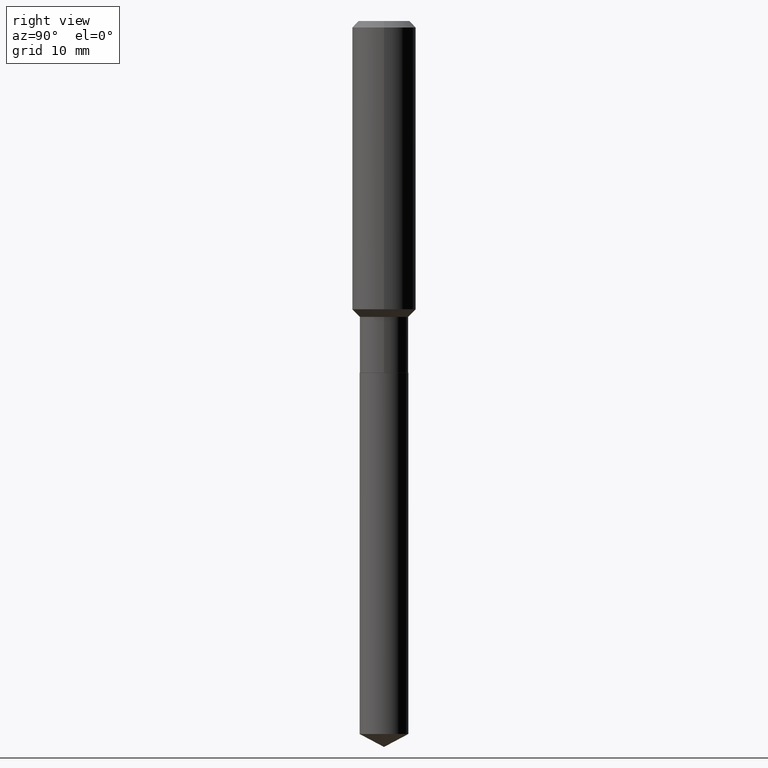
[diagram: clean part render]
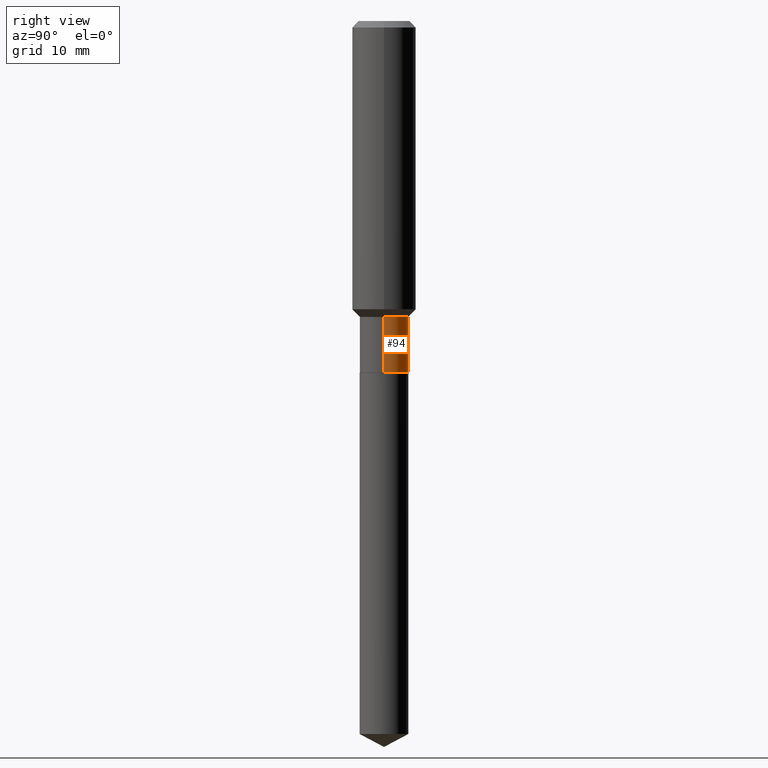
[diagram: same view with one face highlighted and labeled with its STEP entity id]
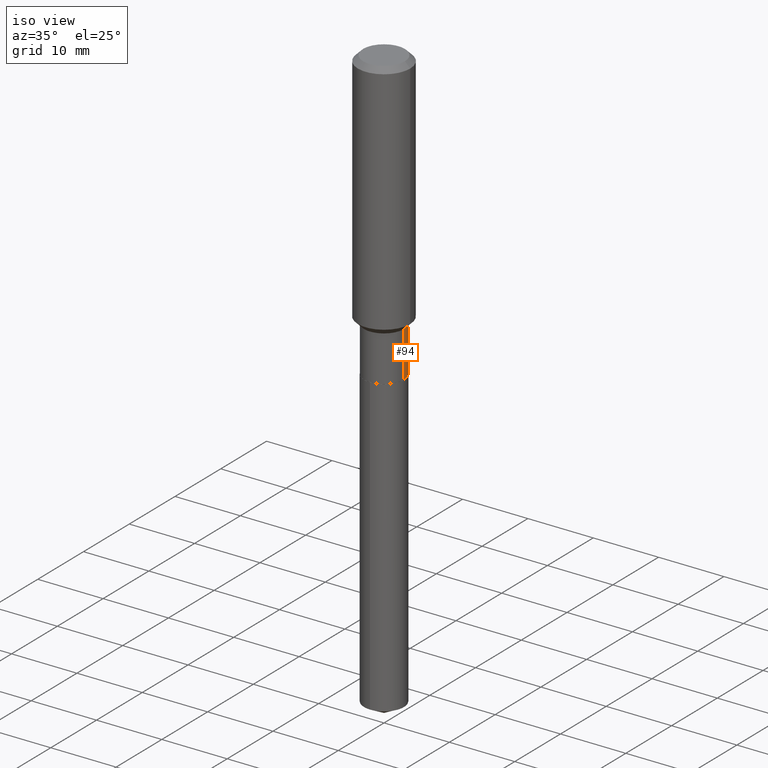
[diagram: same view with one face highlighted and labeled with its STEP entity id]
A machine part, right view. The second image highlights one B-rep face of the part: STEP entity #94.
A second angle (iso view) of the same face is appended — the face is thin or edge-on in the first view.
In plain terms, the highlighted cylindrical surface (edge-blend (fillet) strip) has radius 3.0505 mm, axis along (-0, 0, 1).
Its self-contained STEP definition (entity closure, byte-faithful):
#1 = CARTESIAN_POINT ( 'NONE',  ( 0.1200999999999999707, -5.936565720434997750E-15, -1.460100000000000176 ) ) ;
#13 = CIRCLE ( 'NONE', #397, 0.1200999999999999984 ) ;
#15 = DIRECTION ( 'NONE',  ( -2.445468806185136597E-29, 3.491481338843145583E-15, 1.000000000000000000 ) ) ;
#27 = DIRECTION ( 'NONE',  ( 1.000000000000000000, -6.982962677686266711E-15, 4.876176775795936353E-29 ) ) ;
#39 = DIRECTION ( 'NONE',  ( -2.445468806185136877E-29, 3.491481338843145188E-15, 1.000000000000000000 ) ) ;
#40 = ORIENTED_EDGE ( 'NONE', *, *, #458, .F. ) ;
#77 = VERTEX_POINT ( 'NONE', #241 ) ;
#81 = ORIENTED_EDGE ( 'NONE', *, *, #200, .T. ) ;
#94 = ADVANCED_FACE ( 'NONE', ( #138 ), #447, .T. ) ;
#97 = CARTESIAN_POINT ( 'NONE',  ( 3.570629003910918059E-29, -5.097911902844877459E-15, -1.460100000000000176 ) ) ;
#104 = VECTOR ( 'NONE', #39, 39.37007874015748143 ) ;
#112 = AXIS2_PLACEMENT_3D ( 'NONE', #97, #211, #170 ) ;
#129 = VECTOR ( 'NONE', #327, 39.37007874015748143 ) ;
#138 = FACE_OUTER_BOUND ( 'NONE', #251, .T. ) ;
#153 = CIRCLE ( 'NONE', #112, 0.1200999999999999707 ) ;
#154 = ORIENTED_EDGE ( 'NONE', *, *, #453, .T. ) ;
#166 = VERTEX_POINT ( 'NONE', #470 ) ;
#170 = DIRECTION ( 'NONE',  ( 1.000000000000000000, -6.982962677686267499E-15, 0.000000000000000000 ) ) ;
#176 = CARTESIAN_POINT ( 'NONE',  ( -0.1200999999999999845, 8.533618256478802134E-16, -5.907641043396141244E-30 ) ) ;
#191 = ORIENTED_EDGE ( 'NONE', *, *, #225, .F. ) ;
#200 = EDGE_CURVE ( 'NONE', #77, #166, #13, .T. ) ;
#211 = DIRECTION ( 'NONE',  ( -2.445468806185136597E-29, 3.491481338843145583E-15, 1.000000000000000000 ) ) ;
#225 = EDGE_CURVE ( 'NONE', #77, #231, #418, .T. ) ;
#231 = VERTEX_POINT ( 'NONE', #1 ) ;
#233 = VERTEX_POINT ( 'NONE', #336 ) ;
#241 = CARTESIAN_POINT ( 'NONE',  ( 0.1200999999999999984, -6.899167125554054261E-15, -1.735800000000000454 ) ) ;
#251 = EDGE_LOOP ( 'NONE', ( #81, #154, #40, #191 ) ) ;
#269 = DIRECTION ( 'NONE',  ( 1.000000000000000000, -6.982962677686265922E-15, 0.000000000000000000 ) ) ;
#297 = CARTESIAN_POINT ( 'NONE',  ( 0.1200999999999999845, -8.386538175901204884E-16, 5.856288307730918652E-30 ) ) ;
#327 = DIRECTION ( 'NONE',  ( -2.445468806185136877E-29, 3.491481338843145188E-15, 1.000000000000000000 ) ) ;
#334 = DIRECTION ( 'NONE',  ( -2.445468806185136597E-29, 3.491481338843145583E-15, 1.000000000000000000 ) ) ;
#336 = CARTESIAN_POINT ( 'NONE',  ( -0.1200999999999999707, -4.725850779756525106E-15, -1.460100000000000176 ) ) ;
#394 = CARTESIAN_POINT ( 'NONE',  ( 0.000000000000000000, 0.000000000000000000, 0.000000000000000000 ) ) ;
#397 = AXIS2_PLACEMENT_3D ( 'NONE', #489, #334, #269 ) ;
#418 = LINE ( 'NONE', #297, #104 ) ;
#427 = AXIS2_PLACEMENT_3D ( 'NONE', #394, #15, #27 ) ;
#438 = LINE ( 'NONE', #176, #129 ) ;
#447 = CYLINDRICAL_SURFACE ( 'NONE', #427, 0.1200999999999999845 ) ;
#453 = EDGE_CURVE ( 'NONE', #166, #233, #438, .T. ) ;
#458 = EDGE_CURVE ( 'NONE', #231, #233, #153, .T. ) ;
#470 = CARTESIAN_POINT ( 'NONE',  ( -0.1201000000000000262, -4.725850779756525106E-15, -1.735800000000000454 ) ) ;
#489 = CARTESIAN_POINT ( 'NONE',  ( 4.244844753776160881E-29, -6.060513307963933970E-15, -1.735800000000000454 ) ) ;